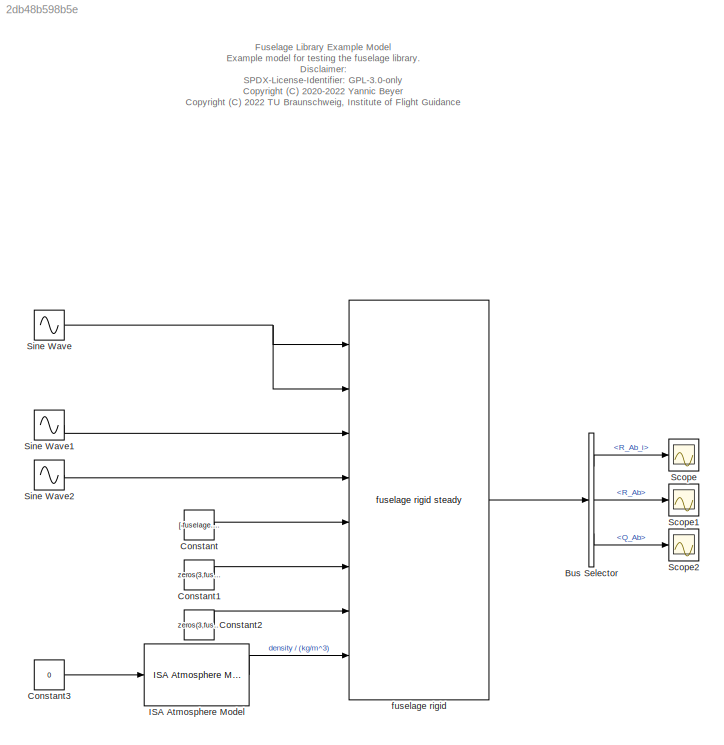
MODEL slx_2db48b598b5e
KIND model
CONFIG AbsTol = auto
CONFIG EnableMultiTasking = off
CONFIG FixedStep = 0.01
CONFIG MaxStep = auto
CONFIG MinStep = auto
CONFIG RelTol = 1e-3
CONFIG SampleTimeConstraint = Unconstrained
CONFIG Solver = FixedStepAuto
CONFIG SolverName = FixedStepAuto
CONFIG StartTime = 0.0
CONFIG StopTime = 100
BLOCK [BusSelector] Bus Selector
  OutputAsBus = off
  OutputSignals = aero.R_Ab_i,aero.R_Ab,aero.Q_Ab
  Ports = [1, 3]
BLOCK [Constant] Constant
  Value = [-fuselage.params.total_length/2;0;0]
  VectorParams1D = off
BLOCK [Constant] Constant1
  Value = zeros(3,fuselage.n_segments+1)
  VectorParams1D = off
BLOCK [Constant] Constant2
  Value = zeros(3,fuselage.n_segments+1)
  VectorParams1D = off
BLOCK [Constant] Constant3
  Value = 0
  VectorParams1D = off
BLOCK [Reference] ISA Atmosphere Model  REF=atmosphere_lib/ISA Atmosphere Model  (lib defined in slx_398a0eb2fa35)
  Ports = [1, 1]
  SourceBlock = atmosphere_lib/ISA Atmosphere Model
  SourceProductName = LADAC
BLOCK [Scope] Scope
  Floating = off
  NumInputPorts = 1
  Ports = [1]
  ScopeSpecificationString = Simulink.scopes.TimeScopeBlockCfg('CurrentConfiguration', extmgr.ConfigurationSet(extmgr.Configuration('Core','General UI',true),extmgr.Configuration('Core','Source UI',true),extmgr.Configuration('Sources','WiredSimulink',true),extmgr.Configuration('Visuals','Time Domain',true,'SerializedDisplays',{struct('MinYLimReal','-361.87394','MaxYLimReal','420.43381','YLabelReal','','MinYLimMag',' 0.00000',...<+2219ch>
BLOCK [Scope] Scope1
  Floating = off
  NumInputPorts = 1
  Ports = [1]
  ScopeSpecificationString = Simulink.scopes.TimeScopeBlockCfg('CurrentConfiguration', extmgr.ConfigurationSet(extmgr.Configuration('Core','General UI',true),extmgr.Configuration('Core','Source UI',true),extmgr.Configuration('Sources','WiredSimulink',true,'DataLoggingVariableName','ScopeData1'),extmgr.Configuration('Visuals','Time Domain',true,'SerializedDisplays',{struct('MinYLimReal','-586.02751','MaxYLimReal','582.01683','...<+1428ch>
BLOCK [Scope] Scope2
  Floating = off
  NumInputPorts = 1
  Ports = [1]
  ScopeSpecificationString = Simulink.scopes.TimeScopeBlockCfg('CurrentConfiguration', extmgr.ConfigurationSet(extmgr.Configuration('Core','General UI',true),extmgr.Configuration('Core','Source UI',true),extmgr.Configuration('Sources','WiredSimulink',true,'DataLoggingVariableName','ScopeData2'),extmgr.Configuration('Visuals','Time Domain',true),extmgr.Configuration('Tools','Plot Navigation',true),extmgr.Configuration('Tools',...<+40ch>
BLOCK [Sin] Sine Wave
  Amplitude = 0.1
  Frequency = 0.2
  Ports = [0, 1]
  SampleTime = 0
BLOCK [Sin] Sine Wave1
  Amplitude = 10
  Bias = 10
  Frequency = 0.1
  Ports = [0, 1]
  SampleTime = 0
BLOCK [Sin] Sine Wave2
  Amplitude = ones(3,1)
  Bias = zeros(3,1)
  Frequency = [0.5;1;2]
  Ports = [0, 1]
  SampleTime = 0
BLOCK [Reference] fuselage rigid  REF=fuselage_lib/fuselage rigid steady  (lib defined in slx_dbbfa9b15eca)
  Ports = [8, 1]
  SourceBlock = fuselage_lib/fuselage rigid steady
  SourceProductName = LADAC
ANNOTATION (root): Fuselage Library Example Model Example model for testing the fuselage library. Disclaimer: SPDX-License-Identifier: GPL-3.0-only <copyright redacted>
LINE Bus Selector:1 -> Scope:1
LINE Bus Selector:2 -> Scope1:1
LINE Bus Selector:3 -> Scope2:1
LINE Constant1:1 -> fuselage rigid:6
LINE Constant2:1 -> fuselage rigid:7
LINE Constant3:1 -> ISA Atmosphere Model:1
LINE Constant:1 -> fuselage rigid:5
LINE ISA Atmosphere Model:1 -> fuselage rigid:8
LINE Sine Wave1:1 -> fuselage rigid:3
LINE Sine Wave2:1 -> fuselage rigid:4
NET Sine Wave:1 -> fuselage rigid:1, fuselage rigid:2
LINE fuselage rigid:1 -> Bus Selector:1
note: NET lines group one-source signal fan-out (src -> all destinations, sorted); 1:1 wires keep LINE
